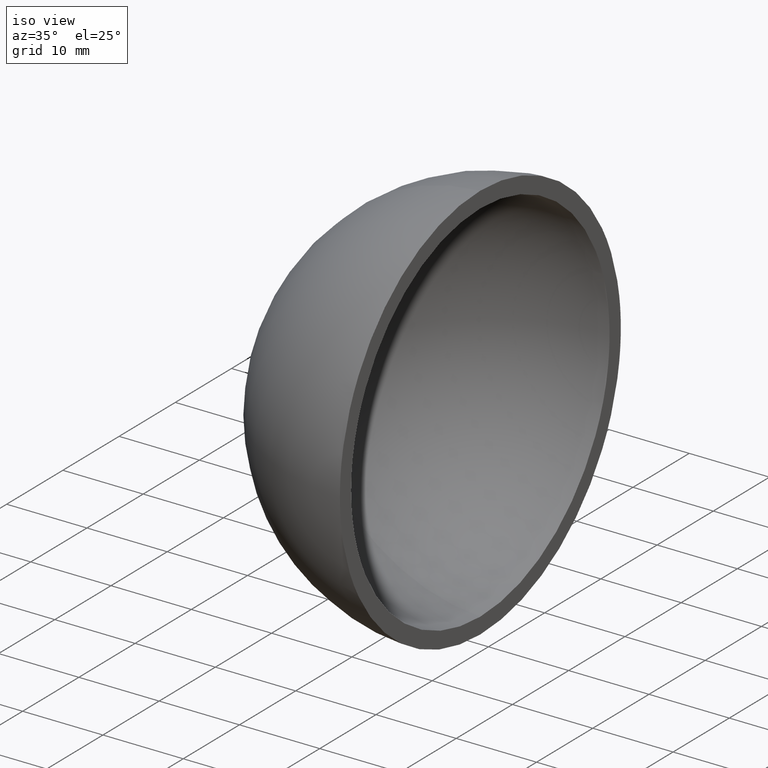
[diagram: clean part render]
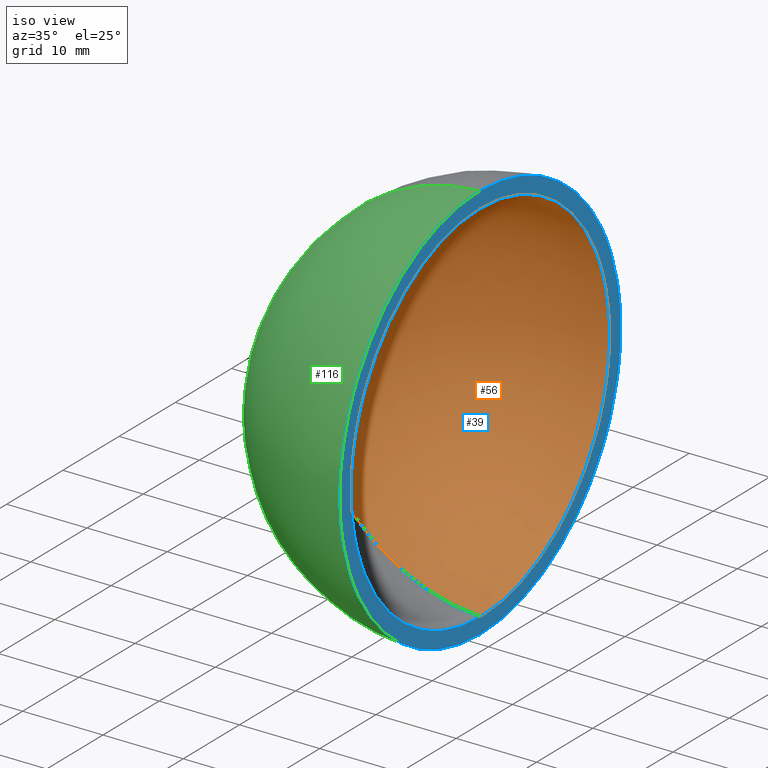
[diagram: same view with three faces highlighted in distinct colors, each labeled with its STEP entity id]
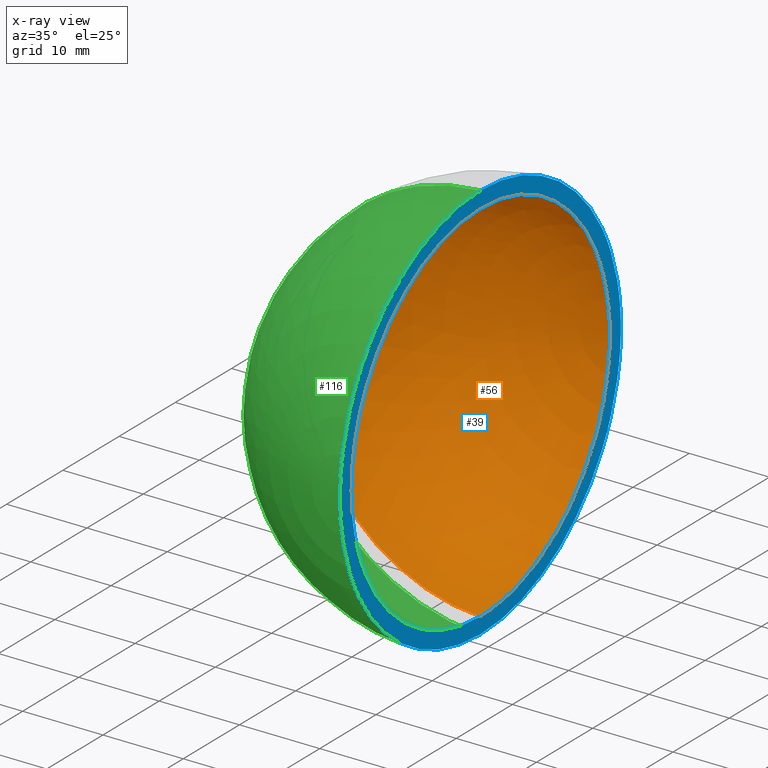
[diagram: x-ray of the same camera — body ghosted, the three highlighted faces saturated]
A machine part, iso view with three faces highlighted in distinct colors.
The next image is the same camera in x-ray (body ghosted, the three faces saturated) — at least one of them is partly hidden behind the body in this view.
Their STEP definitions:

[orange] entity #56 — the highlighted spherical surface has radius 23 mm.
#2 = EDGE_CURVE ( 'NONE', #117, #77, #138, .T. ) ;
#3 = EDGE_CURVE ( 'NONE', #117, #14, #16, .T. ) ;
#4 = ORIENTED_EDGE ( 'NONE', *, *, #12, .T. ) ;
#12 = EDGE_CURVE ( 'NONE', #14, #77, #105, .T. ) ;
#13 = AXIS2_PLACEMENT_3D ( 'NONE', #167, #47, #51 ) ;
#14 = VERTEX_POINT ( 'NONE', #49 ) ;
#16 = CIRCLE ( 'NONE', #141, 23.00000000000000000 ) ;
#19 = DIRECTION ( 'NONE',  ( 0.0000000000000000000, -1.000000000000000000, 1.224646799147353200E-016 ) ) ;
#29 = SPHERICAL_SURFACE ( 'NONE', #137, 23.00000000000000000 ) ;
#38 = ORIENTED_EDGE ( 'NONE', *, *, #3, .T. ) ;
#43 = CARTESIAN_POINT ( 'NONE',  ( -0.9999999999999958900, 0.0000000000000000000, 22.97825058615211400 ) ) ;
#47 = DIRECTION ( 'NONE',  ( 0.0000000000000000000, 1.000000000000000000, 0.0000000000000000000 ) ) ;
#49 = CARTESIAN_POINT ( 'NONE',  ( -0.9999999999999958900, -2.814024103033697900E-015, -22.97825058615211400 ) ) ;
#51 = DIRECTION ( 'NONE',  ( 0.0000000000000000000, 0.0000000000000000000, 1.000000000000000000 ) ) ;
#53 = EDGE_LOOP ( 'NONE', ( #89, #38, #4 ) ) ;
#56 = ADVANCED_FACE ( 'NONE', ( #140 ), #29, .F. ) ;
#62 = CARTESIAN_POINT ( 'NONE',  ( 0.0000000000000000000, 0.0000000000000000000, 0.0000000000000000000 ) ) ;
#68 = CARTESIAN_POINT ( 'NONE',  ( -0.9999999999999958900, 0.0000000000000000000, 0.0000000000000000000 ) ) ;
#71 = AXIS2_PLACEMENT_3D ( 'NONE', #68, #155, #82 ) ;
#77 = VERTEX_POINT ( 'NONE', #43 ) ;
#82 = DIRECTION ( 'NONE',  ( 0.0000000000000000000, 0.0000000000000000000, -1.000000000000000000 ) ) ;
#89 = ORIENTED_EDGE ( 'NONE', *, *, #2, .F. ) ;
#105 = CIRCLE ( 'NONE', #71, 22.97825058615211400 ) ;
#107 = CARTESIAN_POINT ( 'NONE',  ( -23.00000000000000000, 0.0000000000000000000, 1.408343819019456200E-015 ) ) ;
#110 = DIRECTION ( 'NONE',  ( 0.0000000000000000000, -1.000000000000000000, 0.0000000000000000000 ) ) ;
#117 = VERTEX_POINT ( 'NONE', #107 ) ;
#119 = CARTESIAN_POINT ( 'NONE',  ( 0.0000000000000000000, 0.0000000000000000000, 0.0000000000000000000 ) ) ;
#137 = AXIS2_PLACEMENT_3D ( 'NONE', #62, #110, #157 ) ;
#138 = CIRCLE ( 'NONE', #13, 23.00000000000000000 ) ;
#140 = FACE_OUTER_BOUND ( 'NONE', #53, .T. ) ;
#141 = AXIS2_PLACEMENT_3D ( 'NONE', #119, #19, #153 ) ;
#153 = DIRECTION ( 'NONE',  ( 0.0000000000000000000, -1.224646799147353200E-016, -1.000000000000000000 ) ) ;
#155 = DIRECTION ( 'NONE',  ( 1.000000000000000000, -0.0000000000000000000, -0.0000000000000000000 ) ) ;
#157 = DIRECTION ( 'NONE',  ( 0.0000000000000000000, 0.0000000000000000000, 1.000000000000000000 ) ) ;
#167 = CARTESIAN_POINT ( 'NONE',  ( 0.0000000000000000000, 0.0000000000000000000, 0.0000000000000000000 ) ) ;

[blue] entity #39 — the highlighted planar face has unit normal (-1, 0, 0).
#9 = ORIENTED_EDGE ( 'NONE', *, *, #150, .T. ) ;
#10 = CARTESIAN_POINT ( 'NONE',  ( -0.9999999999999956700, 0.0000000000000000000, 0.0000000000000000000 ) ) ;
#12 = EDGE_CURVE ( 'NONE', #14, #77, #105, .T. ) ;
#14 = VERTEX_POINT ( 'NONE', #49 ) ;
#22 = EDGE_CURVE ( 'NONE', #77, #14, #169, .T. ) ;
#26 = ORIENTED_EDGE ( 'NONE', *, *, #12, .F. ) ;
#35 = FACE_BOUND ( 'NONE', #149, .T. ) ;
#39 = ADVANCED_FACE ( 'NONE', ( #35, #111 ), #106, .F. ) ;
#40 = VERTEX_POINT ( 'NONE', #95 ) ;
#43 = CARTESIAN_POINT ( 'NONE',  ( -0.9999999999999958900, 0.0000000000000000000, 22.97825058615211400 ) ) ;
#44 = CARTESIAN_POINT ( 'NONE',  ( -0.9999999999999956700, 0.0000000000000000000, 22.97825058615211400 ) ) ;
#48 = CARTESIAN_POINT ( 'NONE',  ( -0.9999999999999956700, -3.059166723768090100E-015, -24.97999199359359700 ) ) ;
#49 = CARTESIAN_POINT ( 'NONE',  ( -0.9999999999999958900, -2.814024103033697900E-015, -22.97825058615211400 ) ) ;
#54 = AXIS2_PLACEMENT_3D ( 'NONE', #143, #64, #132 ) ;
#57 = CIRCLE ( 'NONE', #128, 24.97999199359359700 ) ;
#58 = EDGE_CURVE ( 'NONE', #121, #40, #57, .T. ) ;
#61 = CARTESIAN_POINT ( 'NONE',  ( -0.9999999999999956700, 0.0000000000000000000, 0.0000000000000000000 ) ) ;
#64 = DIRECTION ( 'NONE',  ( 1.000000000000000000, -0.0000000000000000000, -0.0000000000000000000 ) ) ;
#65 = DIRECTION ( 'NONE',  ( 1.000000000000000000, -0.0000000000000000000, -0.0000000000000000000 ) ) ;
#67 = DIRECTION ( 'NONE',  ( 1.000000000000000000, -0.0000000000000000000, -0.0000000000000000000 ) ) ;
#68 = CARTESIAN_POINT ( 'NONE',  ( -0.9999999999999958900, 0.0000000000000000000, 0.0000000000000000000 ) ) ;
#71 = AXIS2_PLACEMENT_3D ( 'NONE', #68, #155, #82 ) ;
#73 = CIRCLE ( 'NONE', #171, 24.97999199359359700 ) ;
#77 = VERTEX_POINT ( 'NONE', #43 ) ;
#82 = DIRECTION ( 'NONE',  ( 0.0000000000000000000, 0.0000000000000000000, -1.000000000000000000 ) ) ;
#93 = AXIS2_PLACEMENT_3D ( 'NONE', #44, #109, #123 ) ;
#95 = CARTESIAN_POINT ( 'NONE',  ( -0.9999999999999956700, 0.0000000000000000000, 24.97999199359359700 ) ) ;
#99 = EDGE_LOOP ( 'NONE', ( #9, #124 ) ) ;
#105 = CIRCLE ( 'NONE', #71, 22.97825058615211400 ) ;
#106 = PLANE ( 'NONE',  #93 ) ;
#109 = DIRECTION ( 'NONE',  ( -1.000000000000000000, 0.0000000000000000000, 0.0000000000000000000 ) ) ;
#111 = FACE_OUTER_BOUND ( 'NONE', #99, .T. ) ;
#121 = VERTEX_POINT ( 'NONE', #48 ) ;
#123 = DIRECTION ( 'NONE',  ( 0.0000000000000000000, 0.0000000000000000000, 1.000000000000000000 ) ) ;
#124 = ORIENTED_EDGE ( 'NONE', *, *, #58, .T. ) ;
#128 = AXIS2_PLACEMENT_3D ( 'NONE', #10, #67, #165 ) ;
#132 = DIRECTION ( 'NONE',  ( 0.0000000000000000000, 0.0000000000000000000, -1.000000000000000000 ) ) ;
#143 = CARTESIAN_POINT ( 'NONE',  ( -0.9999999999999958900, 0.0000000000000000000, 0.0000000000000000000 ) ) ;
#144 = DIRECTION ( 'NONE',  ( 0.0000000000000000000, 0.0000000000000000000, -1.000000000000000000 ) ) ;
#149 = EDGE_LOOP ( 'NONE', ( #159, #26 ) ) ;
#150 = EDGE_CURVE ( 'NONE', #40, #121, #73, .T. ) ;
#155 = DIRECTION ( 'NONE',  ( 1.000000000000000000, -0.0000000000000000000, -0.0000000000000000000 ) ) ;
#159 = ORIENTED_EDGE ( 'NONE', *, *, #22, .F. ) ;
#165 = DIRECTION ( 'NONE',  ( 0.0000000000000000000, 0.0000000000000000000, -1.000000000000000000 ) ) ;
#169 = CIRCLE ( 'NONE', #54, 22.97825058615211400 ) ;
#171 = AXIS2_PLACEMENT_3D ( 'NONE', #61, #65, #144 ) ;

[green] entity #116 — the highlighted spherical surface has radius 25 mm.
#21 = CARTESIAN_POINT ( 'NONE',  ( 0.0000000000000000000, 0.0000000000000000000, 0.0000000000000000000 ) ) ;
#23 = DIRECTION ( 'NONE',  ( 0.0000000000000000000, -1.224646799147353200E-016, -1.000000000000000000 ) ) ;
#32 = CARTESIAN_POINT ( 'NONE',  ( 0.0000000000000000000, 0.0000000000000000000, 0.0000000000000000000 ) ) ;
#37 = EDGE_CURVE ( 'NONE', #80, #121, #75, .T. ) ;
#40 = VERTEX_POINT ( 'NONE', #95 ) ;
#41 = DIRECTION ( 'NONE',  ( 0.0000000000000000000, -1.000000000000000000, 0.0000000000000000000 ) ) ;
#48 = CARTESIAN_POINT ( 'NONE',  ( -0.9999999999999956700, -3.059166723768090100E-015, -24.97999199359359700 ) ) ;
#55 = CIRCLE ( 'NONE', #146, 25.00000000000000000 ) ;
#61 = CARTESIAN_POINT ( 'NONE',  ( -0.9999999999999956700, 0.0000000000000000000, 0.0000000000000000000 ) ) ;
#65 = DIRECTION ( 'NONE',  ( 1.000000000000000000, -0.0000000000000000000, -0.0000000000000000000 ) ) ;
#66 = AXIS2_PLACEMENT_3D ( 'NONE', #21, #83, #23 ) ;
#73 = CIRCLE ( 'NONE', #171, 24.97999199359359700 ) ;
#75 = CIRCLE ( 'NONE', #66, 25.00000000000000000 ) ;
#78 = CARTESIAN_POINT ( 'NONE',  ( 0.0000000000000000000, 0.0000000000000000000, 0.0000000000000000000 ) ) ;
#79 = DIRECTION ( 'NONE',  ( 0.0000000000000000000, 1.000000000000000000, 0.0000000000000000000 ) ) ;
#80 = VERTEX_POINT ( 'NONE', #154 ) ;
#83 = DIRECTION ( 'NONE',  ( 0.0000000000000000000, -1.000000000000000000, 1.224646799147353200E-016 ) ) ;
#92 = DIRECTION ( 'NONE',  ( 0.0000000000000000000, 0.0000000000000000000, 1.000000000000000000 ) ) ;
#95 = CARTESIAN_POINT ( 'NONE',  ( -0.9999999999999956700, 0.0000000000000000000, 24.97999199359359700 ) ) ;
#98 = DIRECTION ( 'NONE',  ( 0.0000000000000000000, 0.0000000000000000000, 1.000000000000000000 ) ) ;
#104 = SPHERICAL_SURFACE ( 'NONE', #161, 25.00000000000000000 ) ;
#108 = FACE_OUTER_BOUND ( 'NONE', #130, .T. ) ;
#113 = ORIENTED_EDGE ( 'NONE', *, *, #150, .F. ) ;
#116 = ADVANCED_FACE ( 'NONE', ( #108 ), #104, .T. ) ;
#121 = VERTEX_POINT ( 'NONE', #48 ) ;
#126 = ORIENTED_EDGE ( 'NONE', *, *, #37, .T. ) ;
#127 = EDGE_CURVE ( 'NONE', #80, #40, #55, .T. ) ;
#130 = EDGE_LOOP ( 'NONE', ( #164, #126, #113 ) ) ;
#144 = DIRECTION ( 'NONE',  ( 0.0000000000000000000, 0.0000000000000000000, -1.000000000000000000 ) ) ;
#146 = AXIS2_PLACEMENT_3D ( 'NONE', #32, #79, #98 ) ;
#150 = EDGE_CURVE ( 'NONE', #40, #121, #73, .T. ) ;
#154 = CARTESIAN_POINT ( 'NONE',  ( -25.00000000000000000, 0.0000000000000000000, 1.530808498934191500E-015 ) ) ;
#161 = AXIS2_PLACEMENT_3D ( 'NONE', #78, #41, #92 ) ;
#164 = ORIENTED_EDGE ( 'NONE', *, *, #127, .F. ) ;
#171 = AXIS2_PLACEMENT_3D ( 'NONE', #61, #65, #144 ) ;